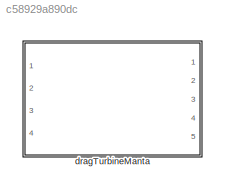
MODEL slx_c58929a890dc
KIND library
CONFIG AbsTol = auto
CONFIG EnableMultiTasking = off
CONFIG FixedStep = auto
CONFIG MaxStep = auto
CONFIG MinStep = auto
CONFIG RelTol = 1e-3
CONFIG SampleTimeConstraint = Unconstrained
CONFIG SolverName = VariableStepAuto
CONFIG StartTime = 0.0
CONFIG StopTime = 10.0
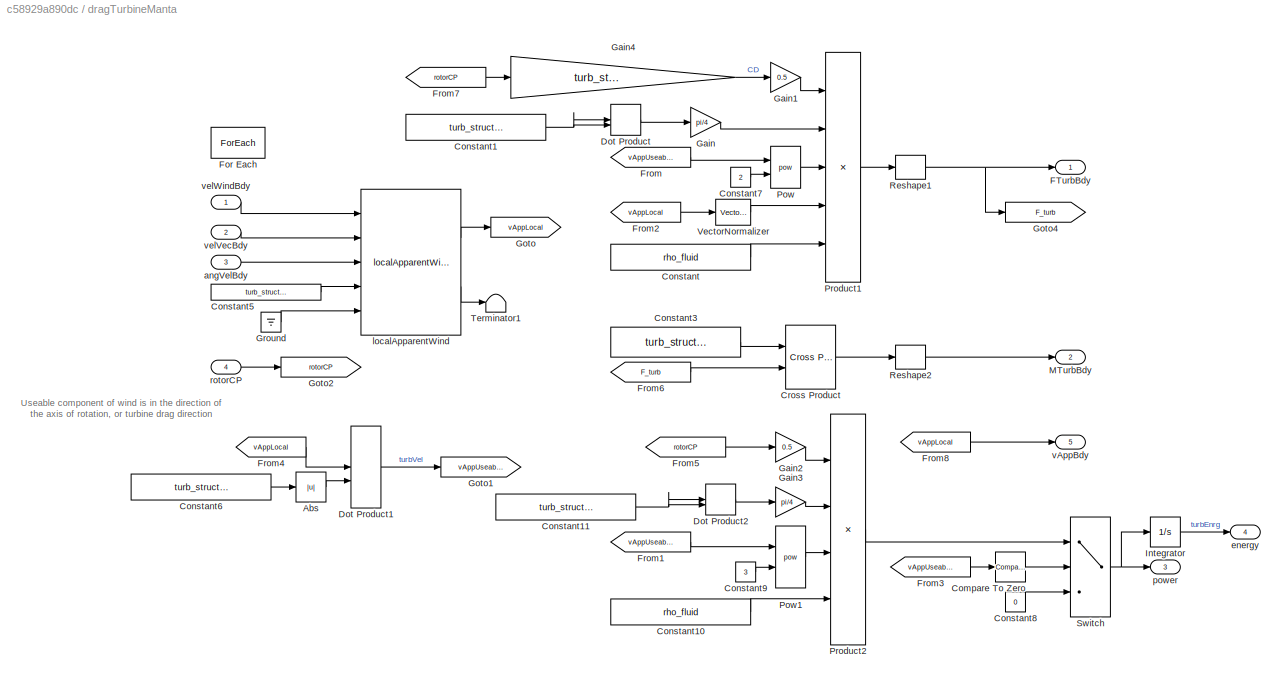
BLOCK [SubSystem] dragTurbineManta
  Ports = [4, 5]
  RequestExecContextInheritance = off
  TreatAsAtomicUnit = on
BLOCK [Abs] dragTurbineManta/Abs
  SaturateOnIntegerOverflow = off
BLOCK [Reference] dragTurbineManta/Compare To Zero  REF=simulink/Logic and Bit
Operations/Compare
To Zero
  Ports = [1, 1]
  SourceBlock = simulink/Logic and Bit\nOperations/Compare\nTo Zero
  SourceProductBaseCode = SL
  SourceType = Compare To Zero
BLOCK [Constant] dragTurbineManta/Constant
  Value = rho_fluid
BLOCK [Constant] dragTurbineManta/Constant1
  Value = turb_struct.diameter
  VectorParams1D = off
BLOCK [Constant] dragTurbineManta/Constant10
  Value = rho_fluid
BLOCK [Constant] dragTurbineManta/Constant11
  Value = turb_struct.diameter
  VectorParams1D = off
BLOCK [Constant] dragTurbineManta/Constant3
  Value = turb_struct.momentArm
BLOCK [Constant] dragTurbineManta/Constant5
  Value = turb_struct.attachPtVec
BLOCK [Constant] dragTurbineManta/Constant6
  Value = turb_struct.axisUnitVec
BLOCK [Constant] dragTurbineManta/Constant7
  Value = 2
BLOCK [Constant] dragTurbineManta/Constant8
  Value = 0
BLOCK [Constant] dragTurbineManta/Constant9
  Value = 3
BLOCK [Reference] dragTurbineManta/Cross Product  REF=vrlib/Utilities/Cross Product
  Ports = [2, 1]
  SourceBlock = vrlib/Utilities/Cross Product
  SourceProductBaseCode = SL
  SourceType = Cross Product
BLOCK [DotProduct] dragTurbineManta/Dot Product
  OutDataTypeStr = Inherit: Inherit via internal rule
BLOCK [DotProduct] dragTurbineManta/Dot Product1
  OutDataTypeStr = Inherit: Inherit via internal rule
BLOCK [DotProduct] dragTurbineManta/Dot Product2
  OutDataTypeStr = Inherit: Inherit via internal rule
BLOCK [Outport] dragTurbineManta/FTurbBdy
  ConcatenationDimension = 2
  PortDimensions = [3,1]
  VectorParamsAs1DForOutWhenUnconnected = off
BLOCK [ForEach] dragTurbineManta/For Each
  DisableCoverage = on
  IterateSubsysMaskParameter = off,on
  Ports = []
  SubsysMaskParameterIterationDimension = 1,2
  SubsysMaskParameterIterationStepSize = 1,1
BLOCK [From] dragTurbineManta/From
  GotoTag = vAppUseable
BLOCK [From] dragTurbineManta/From1
  GotoTag = vAppUseable
BLOCK [From] dragTurbineManta/From2
  GotoTag = vAppLocal
BLOCK [From] dragTurbineManta/From3
  GotoTag = vAppUseable
BLOCK [From] dragTurbineManta/From4
  GotoTag = vAppLocal
BLOCK [From] dragTurbineManta/From5
  GotoTag = rotorCP
BLOCK [From] dragTurbineManta/From6
  GotoTag = F_turb
BLOCK [From] dragTurbineManta/From7
  GotoTag = rotorCP
BLOCK [From] dragTurbineManta/From8
  GotoTag = vAppLocal
BLOCK [Gain] dragTurbineManta/Gain
  Gain = pi/4
BLOCK [Gain] dragTurbineManta/Gain1
  Gain = 0.5
BLOCK [Gain] dragTurbineManta/Gain2
  Gain = 0.5
BLOCK [Gain] dragTurbineManta/Gain3
  Gain = pi/4
BLOCK [Gain] dragTurbineManta/Gain4
  Gain = turb_struct.axialInductionFactor
BLOCK [Goto] dragTurbineManta/Goto
  GotoTag = vAppLocal
BLOCK [Goto] dragTurbineManta/Goto1
  GotoTag = vAppUseable
BLOCK [Goto] dragTurbineManta/Goto2
  GotoTag = rotorCP
BLOCK [Goto] dragTurbineManta/Goto4
  GotoTag = F_turb
BLOCK [Ground] dragTurbineManta/Ground
BLOCK [Integrator] dragTurbineManta/Integrator
  Ports = [1, 1]
BLOCK [Outport] dragTurbineManta/MTurbBdy
  ConcatenationDimension = 2
  Port = 2
  PortDimensions = [3,1]
  VectorParamsAs1DForOutWhenUnconnected = off
BLOCK [Math] dragTurbineManta/Pow
  Operator = pow
  Ports = [2, 1]
  RndMeth = Zero
  SignedPower = on
BLOCK [Math] dragTurbineManta/Pow1
  Operator = pow
  Ports = [2, 1]
  RndMeth = Zero
  SignedPower = on
BLOCK [Product] dragTurbineManta/Product1
  Inputs = 5
  Ports = [5, 1]
BLOCK [Product] dragTurbineManta/Product2
  Inputs = 4
  Ports = [4, 1]
BLOCK [Reshape] dragTurbineManta/Reshape1
  OutputDimensionality = Column vector (2-D)
  Ports = [1, 1]
BLOCK [Reshape] dragTurbineManta/Reshape2
  OutputDimensionality = Column vector (2-D)
  Ports = [1, 1]
BLOCK [Switch] dragTurbineManta/Switch
  Criteria = u2 > Threshold
  InputSameDT = off
  SaturateOnIntegerOverflow = off
BLOCK [Terminator] dragTurbineManta/Terminator1
BLOCK [Reference] dragTurbineManta/VectorNormalizer   REF=vectorNormalizer_ul/VectorNormalizer

  Ports = [1, 1]
  SourceBlock = vectorNormalizer_ul/VectorNormalizer
  SourceType = SubSystem
BLOCK [Inport] dragTurbineManta/angVelBdy
  Port = 3
BLOCK [Outport] dragTurbineManta/energy
  ConcatenationDimension = 2
  Port = 4
  PortDimensions = [1,1]
  VectorParamsAs1DForOutWhenUnconnected = off
BLOCK [Reference] dragTurbineManta/localApparentWind  REF=localApparentWind_ul/localApparentWind
  Ports = [5, 2]
  SourceBlock = localApparentWind_ul/localApparentWind
  SourceType = SubSystem
BLOCK [Outport] dragTurbineManta/power
  ConcatenationDimension = 2
  Port = 3
  PortDimensions = [1,1]
  VectorParamsAs1DForOutWhenUnconnected = off
BLOCK [Inport] dragTurbineManta/rotorCP
  Port = 4
BLOCK [Outport] dragTurbineManta/vAppBdy
  ConcatenationDimension = 2
  Port = 5
  PortDimensions = [3,1]
  VectorParamsAs1DForOutWhenUnconnected = off
BLOCK [Inport] dragTurbineManta/velVecBdy
  Port = 2
BLOCK [Inport] dragTurbineManta/velWindBdy
  Partition = on
  PartitionDimension = 2
  PartitionOffset = 0
  PartitionWidth = 1
ANNOTATION dragTurbineManta: Useable component of wind is in the direction of the axis of rotation, or turbine drag direction
LINE dragTurbineManta/Abs:1 -> dragTurbineManta/Dot Product1:2
LINE dragTurbineManta/Compare To Zero:1 -> dragTurbineManta/Switch:2
LINE dragTurbineManta/Constant10:1 -> dragTurbineManta/Product2:4
NET dragTurbineManta/Constant11:1 -> dragTurbineManta/Dot Product2:1, dragTurbineManta/Dot Product2:2
NET dragTurbineManta/Constant1:1 -> dragTurbineManta/Dot Product:1, dragTurbineManta/Dot Product:2
LINE dragTurbineManta/Constant3:1 -> dragTurbineManta/Cross Product:1
LINE dragTurbineManta/Constant5:1 -> dragTurbineManta/localApparentWind:4
LINE dragTurbineManta/Constant6:1 -> dragTurbineManta/Abs:1
LINE dragTurbineManta/Constant7:1 -> dragTurbineManta/Pow:2
LINE dragTurbineManta/Constant8:1 -> dragTurbineManta/Switch:3
LINE dragTurbineManta/Constant9:1 -> dragTurbineManta/Pow1:2
LINE dragTurbineManta/Constant:1 -> dragTurbineManta/Product1:5
LINE dragTurbineManta/Cross Product:1 -> dragTurbineManta/Reshape2:1
LINE dragTurbineManta/Dot Product1:1 -> dragTurbineManta/Goto1:1
LINE dragTurbineManta/Dot Product2:1 -> dragTurbineManta/Gain3:1
LINE dragTurbineManta/Dot Product:1 -> dragTurbineManta/Gain:1
LINE dragTurbineManta/From1:1 -> dragTurbineManta/Pow1:1
LINE dragTurbineManta/From2:1 -> dragTurbineManta/VectorNormalizer :1
LINE dragTurbineManta/From3:1 -> dragTurbineManta/Compare To Zero:1
LINE dragTurbineManta/From4:1 -> dragTurbineManta/Dot Product1:1
LINE dragTurbineManta/From5:1 -> dragTurbineManta/Gain2:1
LINE dragTurbineManta/From6:1 -> dragTurbineManta/Cross Product:2
LINE dragTurbineManta/From7:1 -> dragTurbineManta/Gain4:1
LINE dragTurbineManta/From8:1 -> dragTurbineManta/vAppBdy:1
LINE dragTurbineManta/From:1 -> dragTurbineManta/Pow:1
LINE dragTurbineManta/Gain1:1 -> dragTurbineManta/Product1:1
LINE dragTurbineManta/Gain2:1 -> dragTurbineManta/Product2:1
LINE dragTurbineManta/Gain3:1 -> dragTurbineManta/Product2:2
LINE dragTurbineManta/Gain4:1 -> dragTurbineManta/Gain1:1
LINE dragTurbineManta/Gain:1 -> dragTurbineManta/Product1:2
LINE dragTurbineManta/Ground:1 -> dragTurbineManta/localApparentWind:5
LINE dragTurbineManta/Integrator:1 -> dragTurbineManta/energy:1
LINE dragTurbineManta/Pow1:1 -> dragTurbineManta/Product2:3
LINE dragTurbineManta/Pow:1 -> dragTurbineManta/Product1:3
LINE dragTurbineManta/Product1:1 -> dragTurbineManta/Reshape1:1
LINE dragTurbineManta/Product2:1 -> dragTurbineManta/Switch:1
NET dragTurbineManta/Reshape1:1 -> dragTurbineManta/FTurbBdy:1, dragTurbineManta/Goto4:1
LINE dragTurbineManta/Reshape2:1 -> dragTurbineManta/MTurbBdy:1
NET dragTurbineManta/Switch:1 -> dragTurbineManta/Integrator:1, dragTurbineManta/power:1
LINE dragTurbineManta/VectorNormalizer :1 -> dragTurbineManta/Product1:4
LINE dragTurbineManta/angVelBdy:1 -> dragTurbineManta/localApparentWind:3
LINE dragTurbineManta/localApparentWind:1 -> dragTurbineManta/Goto:1
LINE dragTurbineManta/localApparentWind:2 -> dragTurbineManta/Terminator1:1
LINE dragTurbineManta/rotorCP:1 -> dragTurbineManta/Goto2:1
LINE dragTurbineManta/velVecBdy:1 -> dragTurbineManta/localApparentWind:2
LINE dragTurbineManta/velWindBdy:1 -> dragTurbineManta/localApparentWind:1
note: NET lines group one-source signal fan-out (src -> all destinations, sorted); 1:1 wires keep LINE
